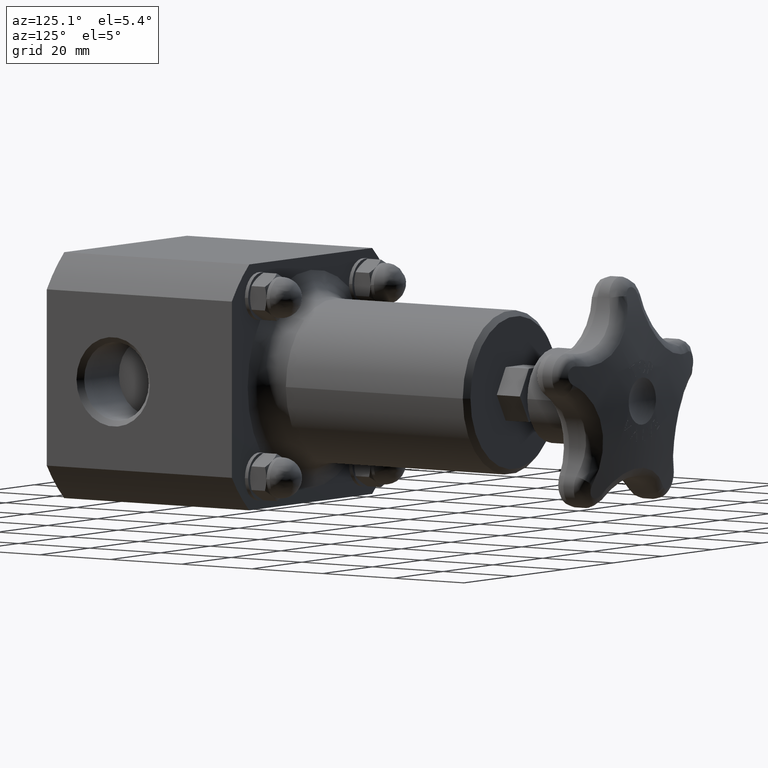
[diagram: clean part render]
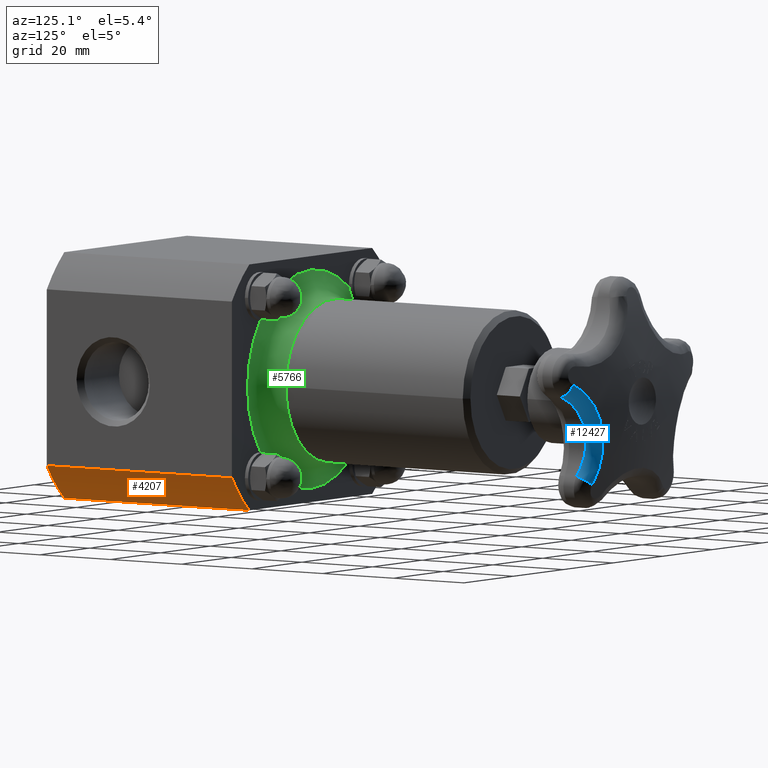
[diagram: same view with three faces highlighted in distinct colors, each labeled with its STEP entity id]
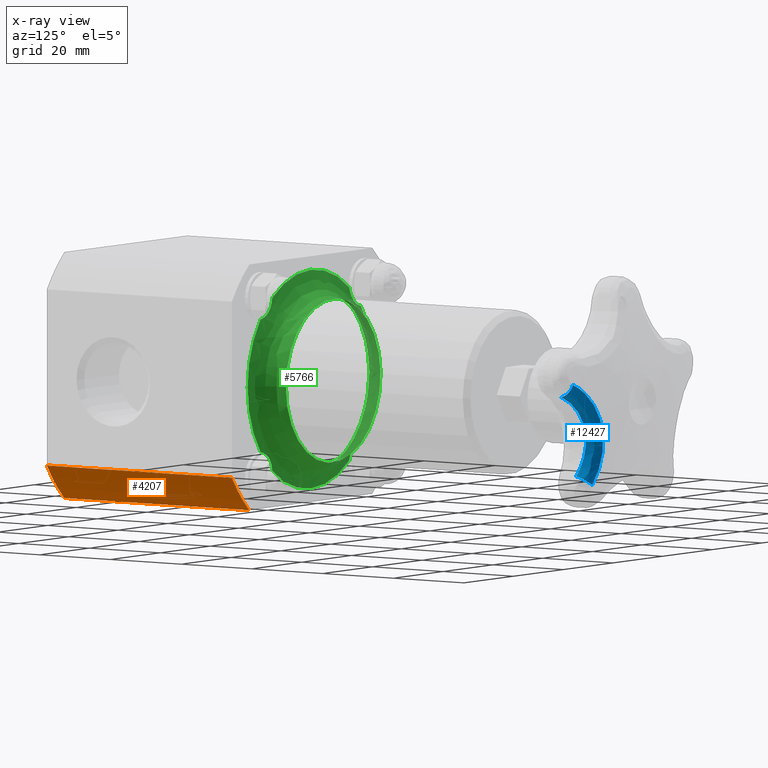
[diagram: x-ray of the same camera — body ghosted, the three highlighted faces saturated]
A machine part, auxiliary view with three faces highlighted in distinct colors.
The next image is the same camera in x-ray (body ghosted, the three faces saturated) — at least one of them is partly hidden behind the body in this view.
Their STEP definitions:

[orange] entity #4207 — the highlighted cylindrical surface (partial cylindrical patch) has radius 37.7825 mm, axis along (0, 1, 0).
#3552=CARTESIAN_POINT('',(1.250000000000000,2.060000000000000,-0.806322671143507));
#3553=VERTEX_POINT('',#3552);
#3560=CARTESIAN_POINT('',(0.973155306207597,2.060000000000000,-1.124999999999999));
#3561=VERTEX_POINT('',#3560);
#3562=CARTESIAN_POINT('',(1.748383E-016,2.060000000000000,5.245148E-016));
#3563=DIRECTION('',(0.0,-1.0,0.0));
#3564=DIRECTION('',(1.0,0.0,0.0));
#3565=AXIS2_PLACEMENT_3D('',#3562,#3563,#3564);
#3566=CIRCLE('',#3565,1.487500000000000);
#3567=EDGE_CURVE('',#3561,#3553,#3566,.T.);
#3731=CARTESIAN_POINT('',(0.973155306207596,0.0,-1.125000000000000));
#3732=VERTEX_POINT('',#3731);
#3733=CARTESIAN_POINT('',(0.973155306207596,0.0,-1.125000000000000));
#3734=DIRECTION('',(0.0,1.0,0.0));
#3735=VECTOR('',#3734,2.060000000000000);
#3736=LINE('',#3733,#3735);
#3737=EDGE_CURVE('',#3732,#3561,#3736,.T.);
#3895=CARTESIAN_POINT('',(1.250000000000000,0.0,-0.806322671143507));
#3896=VERTEX_POINT('',#3895);
#3903=CARTESIAN_POINT('',(1.250000000000000,0.0,-0.806322671143507));
#3904=DIRECTION('',(0.0,1.0,0.0));
#3905=VECTOR('',#3904,2.060000000000000);
#3906=LINE('',#3903,#3905);
#3907=EDGE_CURVE('',#3896,#3553,#3906,.T.);
#4190=CARTESIAN_POINT('',(0.0,0.0,0.0));
#4191=DIRECTION('',(0.0,1.0,0.0));
#4192=DIRECTION('',(-0.840336134453782,0.0,0.542065661272946));
#4193=AXIS2_PLACEMENT_3D('',#4190,#4191,#4192);
#4194=CYLINDRICAL_SURFACE('',#4193,1.487500000000000);
#4195=ORIENTED_EDGE('',*,*,#3907,.F.);
#4196=CARTESIAN_POINT('',(0.0,0.0,0.0));
#4197=DIRECTION('',(0.0,-1.0,0.0));
#4198=DIRECTION('',(-0.840336134453782,0.0,0.542065661272946));
#4199=AXIS2_PLACEMENT_3D('',#4196,#4197,#4198);
#4200=CIRCLE('',#4199,1.487500000000000);
#4201=EDGE_CURVE('',#3732,#3896,#4200,.T.);
#4202=ORIENTED_EDGE('',*,*,#4201,.F.);
#4203=ORIENTED_EDGE('',*,*,#3737,.T.);
#4204=ORIENTED_EDGE('',*,*,#3567,.T.);
#4205=EDGE_LOOP('',(#4195,#4202,#4203,#4204));
#4206=FACE_OUTER_BOUND('',#4205,.T.);
#4207=ADVANCED_FACE('',(#4206),#4194,.T.);

[blue] entity #12427 — the highlighted face is a freeform B-spline surface patch.
#11596=CARTESIAN_POINT('',(0.634239059988198,5.639776509861762,-0.725030975725085));
#11597=VERTEX_POINT('',#11596);
#11598=CARTESIAN_POINT('',(0.939272693013338,5.639776509861743,0.213766014920972));
#11599=VERTEX_POINT('',#11598);
#11600=CARTESIAN_POINT('',(0.634239059988198,5.639776509861760,-0.725030975725085));
#11601=CARTESIAN_POINT('',(0.609404925107206,5.652252050247243,-0.679953289228775));
#11602=CARTESIAN_POINT('',(0.579299160972603,5.669191182312380,-0.606732557940747));
#11603=CARTESIAN_POINT('',(0.556969402328321,5.686640065432801,-0.503705249869330));
#11604=CARTESIAN_POINT('',(0.546623161221186,5.700479299461409,-0.398909241825124));
#11605=CARTESIAN_POINT('',(0.555097984581025,5.708705395733599,-0.291297106783356));
#11606=CARTESIAN_POINT('',(0.595435290578020,5.711726414719168,-0.137164801237273));
#11607=CARTESIAN_POINT('',(0.672596041100127,5.702291865320370,0.006612152510900));
#11608=CARTESIAN_POINT('',(0.803584470532237,5.674633561636137,0.136829623811746));
#11609=CARTESIAN_POINT('',(0.892685456524019,5.652252050247227,0.191894538714845));
#11610=CARTESIAN_POINT('',(0.939272693013337,5.639776509861743,0.213766014920972));
#11611=B_SPLINE_CURVE_WITH_KNOTS('',3,(#11600,#11601,#11602,#11603,#11604,#11605,#11606,#11607,#11608,#11609,#11610),.UNSPECIFIED.,.F.,.U.,(4,1,1,1,1,1,1,1,4),(0.0,0.391421298642903,0.587131947964354,0.782842597285806,1.174263895928709,1.369974545250160,1.957106493214515,2.348527791857418,2.739949090500320),.UNSPECIFIED.);
#11612=EDGE_CURVE('',#11597,#11599,#11611,.T.);
#12314=CARTESIAN_POINT('',(0.634239059988198,5.639776509861760,-0.725030975725085));
#12315=CARTESIAN_POINT('',(0.609404925107206,5.652252050247243,-0.679953289228775));
#12316=CARTESIAN_POINT('',(0.579299160972603,5.669191182312380,-0.606732557940747));
#12317=CARTESIAN_POINT('',(0.556969402328321,5.686640065432801,-0.503705249869330));
#12318=CARTESIAN_POINT('',(0.546623161221186,5.700479299461409,-0.398909241825124));
#12319=CARTESIAN_POINT('',(0.555097984581025,5.708705395733599,-0.291297106783356));
#12320=CARTESIAN_POINT('',(0.595435290578020,5.711726414719168,-0.137164801237273));
#12321=CARTESIAN_POINT('',(0.672596041100127,5.702291865320370,0.006612152510900));
#12322=CARTESIAN_POINT('',(0.803584470532237,5.674633561636137,0.136829623811746));
#12323=CARTESIAN_POINT('',(0.892685456524019,5.652252050247227,0.191894538714845));
#12324=CARTESIAN_POINT('',(0.939272693013337,5.639776509861743,0.213766014920972));
#12325=CARTESIAN_POINT('',(0.649326250264096,5.638908858405083,-0.716479034198390));
#12326=CARTESIAN_POINT('',(0.624922410491279,5.651088396001903,-0.672605995451379));
#12327=CARTESIAN_POINT('',(0.595295676305102,5.667634896483496,-0.601288687946396));
#12328=CARTESIAN_POINT('',(0.573233803893805,5.684685142308566,-0.500863197118269));
#12329=CARTESIAN_POINT('',(0.562914077889989,5.698211791157404,-0.398680123214343));
#12330=CARTESIAN_POINT('',(0.571041819701584,5.706254259329115,-0.293720912480619));
#12331=CARTESIAN_POINT('',(0.610328536095389,5.709208564975151,-0.143402208181455));
#12332=CARTESIAN_POINT('',(0.685723726825577,5.699982480269756,-0.003250584239396));
#12333=CARTESIAN_POINT('',(0.813811435376785,5.672950681463369,0.123431437756794));
#12334=CARTESIAN_POINT('',(0.900920734983083,5.651088396001889,0.176829504124843));
#12335=CARTESIAN_POINT('',(0.946451781236047,5.638908858405067,0.197979320948270));
#12336=CARTESIAN_POINT('',(0.678275646803747,5.629737682248880,-0.697992091729052));
#12337=CARTESIAN_POINT('',(0.654809565371482,5.641481290966751,-0.656648922897254));
#12338=CARTESIAN_POINT('',(0.626232880948397,5.657450055017836,-0.589309426149646));
#12339=CARTESIAN_POINT('',(0.604782021393787,5.673919196696177,-0.494303496302271));
#12340=CARTESIAN_POINT('',(0.594560295023424,5.686990907861513,-0.397549413351693));
#12341=CARTESIAN_POINT('',(0.601996316371871,5.694767430259496,-0.298083431149255));
#12342=CARTESIAN_POINT('',(0.639120845750692,5.697624463609550,-0.155648472275098));
#12343=CARTESIAN_POINT('',(0.710840546774221,5.688701134270717,-0.022976638941152));
#12344=CARTESIAN_POINT('',(0.832826788675212,5.662580281329959,0.096400882860917));
#12345=CARTESIAN_POINT('',(0.915720619277606,5.641481290966734,0.146352732376515));
#12346=CARTESIAN_POINT('',(0.959005982870065,5.629737682248862,0.166007041967768));
#12347=CARTESIAN_POINT('',(0.710018712527706,5.596249847681917,-0.671236273007384));
#12348=CARTESIAN_POINT('',(0.688115080256413,5.607863275065633,-0.633222568873523));
#12349=CARTESIAN_POINT('',(0.661372496043116,5.623659194558773,-0.571187821484224));
#12350=CARTESIAN_POINT('',(0.641181958427642,5.639954133777977,-0.483489352397057));
#12351=CARTESIAN_POINT('',(0.631438086115179,5.652889318868489,-0.394094314156937));
#12352=CARTESIAN_POINT('',(0.638138809833219,5.660585919319716,-0.302108899456891));
#12353=CARTESIAN_POINT('',(0.672406169331497,5.663413717234461,-0.170379304865806));
#12354=CARTESIAN_POINT('',(0.738918461426657,5.654581419441741,-0.047768688126671));
#12355=CARTESIAN_POINT('',(0.852086425079345,5.628733900591795,0.062130081463257));
#12356=CARTESIAN_POINT('',(0.928895681415786,5.607863275065618,0.107823923385700));
#12357=CARTESIAN_POINT('',(0.968959986836696,5.596249847681901,0.125703024028426));
#12358=CARTESIAN_POINT('',(0.721800342270048,5.557063098209351,-0.653900368738561));
#12359=CARTESIAN_POINT('',(0.701201207316510,5.568905556073251,-0.617663576465119));
#12360=CARTESIAN_POINT('',(0.676099146492527,5.584999395989168,-0.558596334411585));
#12361=CARTESIAN_POINT('',(0.657243279537998,5.601590152963921,-0.475191185703663));
#12362=CARTESIAN_POINT('',(0.648249860070973,5.614754643912121,-0.390214973244606));
#12363=CARTESIAN_POINT('',(0.654775826089533,5.622583835651645,-0.302814715994396));
#12364=CARTESIAN_POINT('',(0.687399123652234,5.625459704437335,-0.177637775384667));
#12365=CARTESIAN_POINT('',(0.750437954164873,5.616477786158201,-0.061047149173058));
#12366=CARTESIAN_POINT('',(0.857588480402733,5.590170031813914,0.043756755201224));
#12367=CARTESIAN_POINT('',(0.930337234319761,5.568905556073236,0.087544601616398));
#12368=CARTESIAN_POINT('',(0.968301736655314,5.557063098209334,0.104752914651571));
#12369=CARTESIAN_POINT('',(0.721303949636517,5.531745902372996,-0.647167143476137));
#12370=CARTESIAN_POINT('',(0.701402759649911,5.543782616005218,-0.611364901272312));
#12371=CARTESIAN_POINT('',(0.677239420072981,5.560129296916313,-0.553154415418867));
#12372=CARTESIAN_POINT('',(0.659250826448463,5.576971197306524,-0.471160326074834));
#12373=CARTESIAN_POINT('',(0.650844185956822,5.590330430003283,-0.387718643815346));
#12374=CARTESIAN_POINT('',(0.657495136560326,5.598272268062089,-0.301994902456244));
#12375=CARTESIAN_POINT('',(0.689589845422821,5.601188996223857,-0.179212887325718));
#12376=CARTESIAN_POINT('',(0.751159970354689,5.592079914456321,-0.064731383461377));
#12377=CARTESIAN_POINT('',(0.855717717865669,5.565381335195130,0.038731125851736));
#12378=CARTESIAN_POINT('',(0.926798025195425,5.543782616005202,0.082330396854231));
#12379=CARTESIAN_POINT('',(0.963942456069288,5.531745902372978,0.099597393256652));
#12380=CARTESIAN_POINT('',(0.720317002653474,5.523308214565908,-0.645375686398881));
#12381=CARTESIAN_POINT('',(0.700633113442560,5.535409488739826,-0.609646469692531));
#12382=CARTESIAN_POINT('',(0.676770855760733,5.551840446843009,-0.551610674625683));
#12383=CARTESIAN_POINT('',(0.659071970844193,5.568765863469818,-0.469949762035215));
#12384=CARTESIAN_POINT('',(0.650871392701319,5.582189920477567,-0.386886952641073));
#12385=CARTESIAN_POINT('',(0.657588658468642,5.590169233861591,-0.301592040856828));
#12386=CARTESIAN_POINT('',(0.689560582037411,5.593099622277593,-0.179424578985066));
#12387=CARTESIAN_POINT('',(0.750719292497292,5.583948109360758,-0.065464916519507));
#12388=CARTESIAN_POINT('',(0.854542588344285,5.557119554787053,0.037747306925938));
#12389=CARTESIAN_POINT('',(0.925165299594352,5.535409488739809,0.081392543192681));
#12390=CARTESIAN_POINT('',(0.962091007137333,5.523308214565891,0.098728186917886));
#12391=B_SPLINE_SURFACE_WITH_KNOTS('',3,3,((#12314,#12325,#12336,#12347,#12358,#12369,#12380),(#12315,#12326,#12337,#12348,#12359,#12370,#12381),(#12316,#12327,#12338,#12349,#12360,#12371,#12382),(#12317,#12328,#12339,#12350,#12361,#12372,#12383),(#12318,#12329,#12340,#12351,#12362,#12373,#12384),(#12319,#12330,#12341,#12352,#12363,#12374,#12385),(#12320,#12331,#12342,#12353,#12364,#12375,#12386),(#12321,#12332,#12343,#12354,#12365,#12376,#12387),(#12322,#12333,#12344,#12355,#12366,#12377,#12388),(#12323,#12334,#12345,#12356,#12367,#12378,#12389),(#12324,#12335,#12346,#12357,#12368,#12379,#12390)),.UNSPECIFIED.,.F.,.F.,.U.,(4,1,1,1,1,1,1,1,4),(4,1,1,1,4),(0.0,0.391421298642903,0.587131947964354,0.782842597285806,1.174263895928709,1.369974545250160,1.957106493214515,2.348527791857418,2.739949090500320),(0.0,0.285714285714286,0.571428571428571,0.857142857142857,1.0),.UNSPECIFIED.);
#12392=CARTESIAN_POINT('',(0.962091007137200,5.523308214565891,0.098728186917824));
#12393=VERTEX_POINT('',#12392);
#12394=CARTESIAN_POINT('',(0.911094512222938,5.523308214565891,0.207353034473343));
#12395=DIRECTION('',(-0.879729593103953,0.235581736418006,-0.413009792236735));
#12396=DIRECTION('',(0.234818173253336,0.970569127465436,0.053441503730243));
#12397=AXIS2_PLACEMENT_3D('',#12394,#12395,#12396);
#12398=CIRCLE('',#12397,0.119999999999999);
#12399=EDGE_CURVE('',#11599,#12393,#12398,.T.);
#12400=ORIENTED_EDGE('',*,*,#12399,.T.);
#12401=CARTESIAN_POINT('',(0.720317002653418,5.523308214565909,-0.645375686398778));
#12402=VERTEX_POINT('',#12401);
#12403=CARTESIAN_POINT('',(0.962091007137333,5.523308214565891,0.098728186917886));
#12404=CARTESIAN_POINT('',(0.925165299594352,5.535409488739809,0.081392543192681));
#12405=CARTESIAN_POINT('',(0.854542588344285,5.557119554787053,0.037747306925938));
#12406=CARTESIAN_POINT('',(0.750719292497292,5.583948109360758,-0.065464916519507));
#12407=CARTESIAN_POINT('',(0.689560582037411,5.593099622277593,-0.179424578985066));
#12408=CARTESIAN_POINT('',(0.657588658468642,5.590169233861591,-0.301592040856828));
#12409=CARTESIAN_POINT('',(0.650871392701319,5.582189920477567,-0.386886952641073));
#12410=CARTESIAN_POINT('',(0.659071970844193,5.568765863469818,-0.469949762035215));
#12411=CARTESIAN_POINT('',(0.676770855760733,5.551840446843009,-0.551610674625683));
#12412=CARTESIAN_POINT('',(0.700633113442560,5.535409488739826,-0.609646469692531));
#12413=CARTESIAN_POINT('',(0.720317002653474,5.523308214565908,-0.645375686398881));
#12414=B_SPLINE_CURVE_WITH_KNOTS('',3,(#12403,#12404,#12405,#12406,#12407,#12408,#12409,#12410,#12411,#12412,#12413),.UNSPECIFIED.,.F.,.U.,(4,1,1,1,1,1,1,1,4),(-2.739949090500320,-2.348527791857418,-1.957106493214515,-1.369974545250160,-1.174263895928709,-0.782842597285806,-0.587131947964354,-0.391421298642903,0.0),.UNSPECIFIED.);
#12415=EDGE_CURVE('',#12393,#12402,#12414,.T.);
#12416=ORIENTED_EDGE('',*,*,#12415,.T.);
#12417=CARTESIAN_POINT('',(0.615211888188552,5.523308214565909,-0.703280046453333));
#12418=DIRECTION('',(-0.468955126346229,0.235581736417969,0.851224021594719));
#12419=DIRECTION('',(0.875875953873883,9.761277E-034,0.482536333787950));
#12420=AXIS2_PLACEMENT_3D('',#12417,#12418,#12419);
#12421=CIRCLE('',#12420,0.120000000000000);
#12422=EDGE_CURVE('',#12402,#11597,#12421,.T.);
#12423=ORIENTED_EDGE('',*,*,#12422,.T.);
#12424=ORIENTED_EDGE('',*,*,#11612,.T.);
#12425=EDGE_LOOP('',(#12400,#12416,#12423,#12424));
#12426=FACE_OUTER_BOUND('',#12425,.T.);
#12427=ADVANCED_FACE('',(#12426),#12391,.T.);

[green] entity #5766 — the highlighted face is a freeform B-spline surface patch.
#1978=CARTESIAN_POINT('',(-0.793316592760964,2.060000000000001,0.608809316329947));
#1979=VERTEX_POINT('',#1978);
#1980=CARTESIAN_POINT('',(-0.608809316329946,2.060000000000001,0.793316592760964));
#1981=VERTEX_POINT('',#1980);
#1982=CARTESIAN_POINT('',(-0.793316592760964,2.060000000000000,0.608809316329947));
#1983=CARTESIAN_POINT('',(-0.783901469330388,2.060000000000000,0.610189131522686));
#1984=CARTESIAN_POINT('',(-0.774556357469528,2.060263766464451,0.612186874929562));
#1985=CARTESIAN_POINT('',(-0.746903571724986,2.061485488825777,0.620035193684027));
#1986=CARTESIAN_POINT('',(-0.729231573998960,2.062839646955565,0.627668825762386));
#1987=CARTESIAN_POINT('',(-0.700078552643084,2.064632104870336,0.645124790808267));
#1988=CARTESIAN_POINT('',(-0.688204234248433,2.065202034508946,0.653978028841841));
#1989=CARTESIAN_POINT('',(-0.666913288788947,2.065524247516871,0.673510181919990));
#1990=CARTESIAN_POINT('',(-0.657504199467469,2.065314286605632,0.683984719076733));
#1991=CARTESIAN_POINT('',(-0.639260149487560,2.064194505344735,0.708721014746767));
#1992=CARTESIAN_POINT('',(-0.630948361479785,2.063167180406088,0.723205140473347));
#1993=CARTESIAN_POINT('',(-0.616803215202621,2.061050967694440,0.755998492443398));
#1994=CARTESIAN_POINT('',(-0.611575167109622,2.060000000000000,0.774443901245300));
#1995=CARTESIAN_POINT('',(-0.608809316329946,2.060000000000000,0.793316592760964));
#1996=B_SPLINE_CURVE_WITH_KNOTS('',3,(#1982,#1983,#1984,#1985,#1986,#1987,#1988,#1989,#1990,#1991,#1992,#1993,#1994,#1995),.UNSPECIFIED.,.F.,.U.,(4,2,2,2,2,2,4),(-1.100617718036940,-1.027485130139244,-0.881135308349529,-0.768583045858963,-0.661560313828025,-0.534751010976304,-0.388945633726486),.UNSPECIFIED.);
#1997=EDGE_CURVE('',#1979,#1981,#1996,.T.);
#3125=CARTESIAN_POINT('',(0.608809316329946,2.060000000000000,0.793316592760965));
#3126=VERTEX_POINT('',#3125);
#3127=CARTESIAN_POINT('',(0.793316592760964,2.060000000000000,0.608809316329946));
#3128=VERTEX_POINT('',#3127);
#3129=CARTESIAN_POINT('',(0.608809316329946,2.060000000000000,0.793316592760965));
#3130=CARTESIAN_POINT('',(0.610189131522685,2.060000000000000,0.783901469330389));
#3131=CARTESIAN_POINT('',(0.612186874929561,2.060263766464450,0.774556357469528));
#3132=CARTESIAN_POINT('',(0.620035193684027,2.061485488825777,0.746903571724986));
#3133=CARTESIAN_POINT('',(0.627668825762385,2.062839646955565,0.729231573998961));
#3134=CARTESIAN_POINT('',(0.645124790808268,2.064632104870337,0.700078552643080));
#3135=CARTESIAN_POINT('',(0.653978028841841,2.065202034508947,0.688204234248432));
#3136=CARTESIAN_POINT('',(0.673510181919990,2.065524247516871,0.666913288788947));
#3137=CARTESIAN_POINT('',(0.683984719076732,2.065314286605632,0.657504199467469));
#3138=CARTESIAN_POINT('',(0.708721014746768,2.064194505344735,0.639260149487559));
#3139=CARTESIAN_POINT('',(0.723205140473348,2.063167180406088,0.630948361479784));
#3140=CARTESIAN_POINT('',(0.755998492443397,2.061050967694440,0.616803215202621));
#3141=CARTESIAN_POINT('',(0.774443901245300,2.060000000000000,0.611575167109622));
#3142=CARTESIAN_POINT('',(0.793316592760964,2.060000000000000,0.608809316329946));
#3143=B_SPLINE_CURVE_WITH_KNOTS('',3,(#3129,#3130,#3131,#3132,#3133,#3134,#3135,#3136,#3137,#3138,#3139,#3140,#3141,#3142),.UNSPECIFIED.,.F.,.U.,(4,2,2,2,2,2,4),(-1.100617718036748,-1.027485130139073,-0.881135308349417,-0.768583045858883,-0.661560313827966,-0.534751010976267,-0.388945633726462),.UNSPECIFIED.);
#3144=EDGE_CURVE('',#3126,#3128,#3143,.T.);
#3586=CARTESIAN_POINT('',(-0.793316592760964,2.060000000000001,-0.608809316329946));
#3587=VERTEX_POINT('',#3586);
#3588=CARTESIAN_POINT('',(-0.608809316329946,2.060000000000001,-0.793316592760963));
#3589=VERTEX_POINT('',#3588);
#3597=CARTESIAN_POINT('',(0.608809316329946,2.060000000000000,-0.793316592760964));
#3598=VERTEX_POINT('',#3597);
#3599=CARTESIAN_POINT('',(1.748383E-016,2.060000000000000,5.245148E-016));
#3600=DIRECTION('',(0.0,-1.0,0.0));
#3601=DIRECTION('',(1.0,0.0,0.0));
#3602=AXIS2_PLACEMENT_3D('',#3599,#3600,#3601);
#3603=CIRCLE('',#3602,1.000000000000000);
#3604=EDGE_CURVE('',#3589,#3598,#3603,.T.);
#3606=CARTESIAN_POINT('',(0.793316592760964,2.060000000000000,-0.608809316329945));
#3607=VERTEX_POINT('',#3606);
#3615=CARTESIAN_POINT('',(1.748383E-016,2.060000000000000,5.245148E-016));
#3616=DIRECTION('',(0.0,-1.0,0.0));
#3617=DIRECTION('',(1.0,0.0,0.0));
#3618=AXIS2_PLACEMENT_3D('',#3615,#3616,#3617);
#3619=CIRCLE('',#3618,1.000000000000000);
#3620=EDGE_CURVE('',#3607,#3128,#3619,.T.);
#3623=CARTESIAN_POINT('',(1.748383E-016,2.060000000000000,5.245148E-016));
#3624=DIRECTION('',(0.0,-1.0,0.0));
#3625=DIRECTION('',(1.0,0.0,0.0));
#3626=AXIS2_PLACEMENT_3D('',#3623,#3624,#3625);
#3627=CIRCLE('',#3626,1.000000000000000);
#3628=EDGE_CURVE('',#3126,#1981,#3627,.T.);
#3631=CARTESIAN_POINT('',(1.748383E-016,2.060000000000000,5.245148E-016));
#3632=DIRECTION('',(0.0,-1.0,0.0));
#3633=DIRECTION('',(1.0,0.0,0.0));
#3634=AXIS2_PLACEMENT_3D('',#3631,#3632,#3633);
#3635=CIRCLE('',#3634,1.000000000000000);
#3636=EDGE_CURVE('',#1979,#3587,#3635,.T.);
#3691=CARTESIAN_POINT('',(0.750000000000000,2.310000000000000,6.294178E-016));
#3692=VERTEX_POINT('',#3691);
#3693=CARTESIAN_POINT('',(1.748383E-016,2.310000000000000,5.245148E-016));
#3694=DIRECTION('',(0.0,-1.0,0.0));
#3695=DIRECTION('',(1.0,0.0,0.0));
#3696=AXIS2_PLACEMENT_3D('',#3693,#3694,#3695);
#3697=CIRCLE('',#3696,0.750000000000000);
#3698=EDGE_CURVE('',#3692,#3692,#3697,.T.);
#4633=CARTESIAN_POINT('',(0.793316592760964,2.060000000000000,-0.608809316329945));
#4634=CARTESIAN_POINT('',(0.783901469330388,2.060000000000000,-0.610189131522685));
#4635=CARTESIAN_POINT('',(0.774556357469528,2.060263766464450,-0.612186874929561));
#4636=CARTESIAN_POINT('',(0.746903571724985,2.061485488825777,-0.620035193684026));
#4637=CARTESIAN_POINT('',(0.729231573998959,2.062839646955565,-0.627668825762385));
#4638=CARTESIAN_POINT('',(0.700078552643081,2.064632104870337,-0.645124790808267));
#4639=CARTESIAN_POINT('',(0.688204234248432,2.065202034508946,-0.653978028841840));
#4640=CARTESIAN_POINT('',(0.666913288788947,2.065524247516871,-0.673510181919989));
#4641=CARTESIAN_POINT('',(0.657504199467469,2.065314286605632,-0.683984719076731));
#4642=CARTESIAN_POINT('',(0.639260149487559,2.064194505344735,-0.708721014746766));
#4643=CARTESIAN_POINT('',(0.630948361479784,2.063167180406088,-0.723205140473346));
#4644=CARTESIAN_POINT('',(0.616803215202620,2.061050967694440,-0.755998492443397));
#4645=CARTESIAN_POINT('',(0.611575167109621,2.060000000000000,-0.774443901245300));
#4646=CARTESIAN_POINT('',(0.608809316329945,2.060000000000000,-0.793316592760964));
#4647=B_SPLINE_CURVE_WITH_KNOTS('',3,(#4633,#4634,#4635,#4636,#4637,#4638,#4639,#4640,#4641,#4642,#4643,#4644,#4645,#4646),.UNSPECIFIED.,.F.,.U.,(4,2,2,2,2,2,4),(-1.100617718036753,-1.027485130139073,-0.881135308349396,-0.768583045858843,-0.661560313827915,-0.534751010976216,-0.388945633726426),.UNSPECIFIED.);
#4648=EDGE_CURVE('',#3607,#3598,#4647,.T.);
#5684=CARTESIAN_POINT('',(-1.530808E-016,2.310000000000000,1.250000000000001));
#5685=CARTESIAN_POINT('',(-1.530808E-016,2.060000000000000,1.250000000000001));
#5686=CARTESIAN_POINT('',(-8.749703E-017,2.060000000000000,1.000000000000001));
#5687=CARTESIAN_POINT('',(-2.191320E-017,2.060000000000000,0.750000000000001));
#5688=CARTESIAN_POINT('',(-2.191320E-017,2.310000000000000,0.750000000000001));
#5689=CARTESIAN_POINT('',(-1.250000000000000,2.310000000000000,1.250000000000000));
#5690=CARTESIAN_POINT('',(-1.250000000000000,2.060000000000000,1.250000000000000));
#5691=CARTESIAN_POINT('',(-1.000000000000000,2.060000000000000,1.000000000000000));
#5692=CARTESIAN_POINT('',(-0.750000000000000,2.060000000000000,0.750000000000000));
#5693=CARTESIAN_POINT('',(-0.750000000000000,2.310000000000000,0.750000000000001));
#5694=CARTESIAN_POINT('',(-1.250000000000000,2.310000000000000,1.965957E-016));
#5695=CARTESIAN_POINT('',(-1.250000000000000,2.060000000000000,1.965957E-016));
#5696=CARTESIAN_POINT('',(-1.000000000000000,2.060000000000000,2.621795E-016));
#5697=CARTESIAN_POINT('',(-0.750000000000000,2.060000000000000,3.277633E-016));
#5698=CARTESIAN_POINT('',(-0.750000000000000,2.310000000000000,3.277633E-016));
#5699=CARTESIAN_POINT('',(-1.250000000000000,2.310000000000000,-1.250000000000000));
#5700=CARTESIAN_POINT('',(-1.250000000000000,2.060000000000000,-1.250000000000000));
#5701=CARTESIAN_POINT('',(-1.000000000000000,2.060000000000000,-1.0));
#5702=CARTESIAN_POINT('',(-0.750000000000000,2.060000000000000,-0.750000000000000));
#5703=CARTESIAN_POINT('',(-0.750000000000000,2.310000000000000,-0.750000000000000));
#5704=CARTESIAN_POINT('',(5.027574E-016,2.310000000000000,-1.250000000000000));
#5705=CARTESIAN_POINT('',(5.027574E-016,2.060000000000000,-1.250000000000000));
#5706=CARTESIAN_POINT('',(4.371736E-016,2.060000000000000,-1.000000000000000));
#5707=CARTESIAN_POINT('',(3.715897E-016,2.060000000000000,-0.750000000000000));
#5708=CARTESIAN_POINT('',(3.715897E-016,2.310000000000000,-0.750000000000000));
#5709=CARTESIAN_POINT('',(1.250000000000001,2.310000000000000,-1.249999999999999));
#5710=CARTESIAN_POINT('',(1.250000000000001,2.060000000000000,-1.249999999999999));
#5711=CARTESIAN_POINT('',(1.000000000000001,2.060000000000000,-0.999999999999999));
#5712=CARTESIAN_POINT('',(0.750000000000001,2.060000000000000,-0.749999999999999));
#5713=CARTESIAN_POINT('',(0.750000000000001,2.310000000000000,-0.749999999999999));
#5714=CARTESIAN_POINT('',(1.250000000000001,2.310000000000000,8.524339E-016));
#5715=CARTESIAN_POINT('',(1.250000000000001,2.060000000000000,8.524339E-016));
#5716=CARTESIAN_POINT('',(1.000000000000001,2.060000000000000,7.868501E-016));
#5717=CARTESIAN_POINT('',(0.750000000000001,2.060000000000000,7.212663E-016));
#5718=CARTESIAN_POINT('',(0.750000000000001,2.310000000000000,7.212663E-016));
#5719=CARTESIAN_POINT('',(1.250000000000000,2.310000000000000,1.250000000000001));
#5720=CARTESIAN_POINT('',(1.250000000000000,2.060000000000000,1.250000000000001));
#5721=CARTESIAN_POINT('',(1.000000000000000,2.060000000000000,1.000000000000001));
#5722=CARTESIAN_POINT('',(0.750000000000000,2.060000000000000,0.750000000000001));
#5723=CARTESIAN_POINT('',(0.750000000000000,2.310000000000000,0.750000000000001));
#5724=CARTESIAN_POINT('',(-1.530808E-016,2.310000000000000,1.250000000000001));
#5725=CARTESIAN_POINT('',(-1.530808E-016,2.060000000000000,1.250000000000001));
#5726=CARTESIAN_POINT('',(-8.749703E-017,2.060000000000000,1.000000000000001));
#5727=CARTESIAN_POINT('',(-2.191320E-017,2.060000000000000,0.750000000000001));
#5728=CARTESIAN_POINT('',(-2.191320E-017,2.310000000000000,0.750000000000001));
#5736=(BOUNDED_SURFACE()B_SPLINE_SURFACE(2,2,((#5684,#5689,#5694,#5699,#5704,#5709,#5714,#5719,#5724),(#5685,#5690,#5695,#5700,#5705,#5710,#5715,#5720,#5725),(#5686,#5691,#5696,#5701,#5706,#5711,#5716,#5721,#5726),(#5687,#5692,#5697,#5702,#5707,#5712,#5717,#5722,#5727),(#5688,#5693,#5698,#5703,#5708,#5713,#5718,#5723,#5728)),.UNSPECIFIED.,.F.,.T.,.U.)B_SPLINE_SURFACE_WITH_KNOTS((3,2,3),(3,2,2,2,3),(0.0,1.570796326794897,3.141592653589793),(0.0,1.570796326794897,3.141592653589793,4.712388980384690,6.283185307179586),.UNSPECIFIED.)GEOMETRIC_REPRESENTATION_ITEM()RATIONAL_B_SPLINE_SURFACE(((1.0,0.707106781186548,1.0,0.707106781186548,1.0,0.707106781186548,1.0,0.707106781186548,1.0),(0.707106781186550,0.500000000000002,0.707106781186550,0.500000000000002,0.707106781186550,0.500000000000002,0.707106781186550,0.500000000000002,0.707106781186550),(1.0,0.707106781186548,1.0,0.707106781186548,1.0,0.707106781186548,1.0,0.707106781186548,1.0),(0.707106781186548,0.500000000000001,0.707106781186548,0.500000000000001,0.707106781186548,0.500000000000001,0.707106781186548,0.500000000000001,0.707106781186548),(1.0,0.707106781186548,1.0,0.707106781186548,1.0,0.707106781186548,1.0,0.707106781186548,1.0)))REPRESENTATION_ITEM('')SURFACE());
#5737=ORIENTED_EDGE('',*,*,#3698,.T.);
#5738=EDGE_LOOP('',(#5737));
#5739=FACE_OUTER_BOUND('',#5738,.T.);
#5740=CARTESIAN_POINT('',(-0.608809316329946,2.060000000000000,-0.793316592760963));
#5741=CARTESIAN_POINT('',(-0.610189131522686,2.060000000000000,-0.783901469330388));
#5742=CARTESIAN_POINT('',(-0.612186874929561,2.060263766464451,-0.774556357469528));
#5743=CARTESIAN_POINT('',(-0.620035193684027,2.061485488825777,-0.746903571724986));
#5744=CARTESIAN_POINT('',(-0.627668825762386,2.062839646955565,-0.729231573998960));
#5745=CARTESIAN_POINT('',(-0.645124790808267,2.064632104870336,-0.700078552643082));
#5746=CARTESIAN_POINT('',(-0.653978028841840,2.065202034508946,-0.688204234248433));
#5747=CARTESIAN_POINT('',(-0.673510181919990,2.065524247516871,-0.666913288788946));
#5748=CARTESIAN_POINT('',(-0.683984719076732,2.065314286605632,-0.657504199467469));
#5749=CARTESIAN_POINT('',(-0.708721014746767,2.064194505344735,-0.639260149487559));
#5750=CARTESIAN_POINT('',(-0.723205140473347,2.063167180406088,-0.630948361479784));
#5751=CARTESIAN_POINT('',(-0.755998492443398,2.061050967694440,-0.616803215202620));
#5752=CARTESIAN_POINT('',(-0.774443901245300,2.060000000000000,-0.611575167109621));
#5753=CARTESIAN_POINT('',(-0.793316592760964,2.060000000000000,-0.608809316329946));
#5754=B_SPLINE_CURVE_WITH_KNOTS('',3,(#5740,#5741,#5742,#5743,#5744,#5745,#5746,#5747,#5748,#5749,#5750,#5751,#5752,#5753),.UNSPECIFIED.,.F.,.U.,(4,2,2,2,2,2,4),(-1.100617718036882,-1.027485130139199,-0.881135308349507,-0.768583045858951,-0.661560313828020,-0.534751010976309,-0.388945633726492),.UNSPECIFIED.);
#5755=EDGE_CURVE('',#3589,#3587,#5754,.T.);
#5756=ORIENTED_EDGE('',*,*,#5755,.T.);
#5757=ORIENTED_EDGE('',*,*,#3636,.F.);
#5758=ORIENTED_EDGE('',*,*,#1997,.T.);
#5759=ORIENTED_EDGE('',*,*,#3628,.F.);
#5760=ORIENTED_EDGE('',*,*,#3144,.T.);
#5761=ORIENTED_EDGE('',*,*,#3620,.F.);
#5762=ORIENTED_EDGE('',*,*,#4648,.T.);
#5763=ORIENTED_EDGE('',*,*,#3604,.F.);
#5764=EDGE_LOOP('',(#5756,#5757,#5758,#5759,#5760,#5761,#5762,#5763));
#5765=FACE_BOUND('',#5764,.T.);
#5766=ADVANCED_FACE('',(#5739,#5765),#5736,.T.);